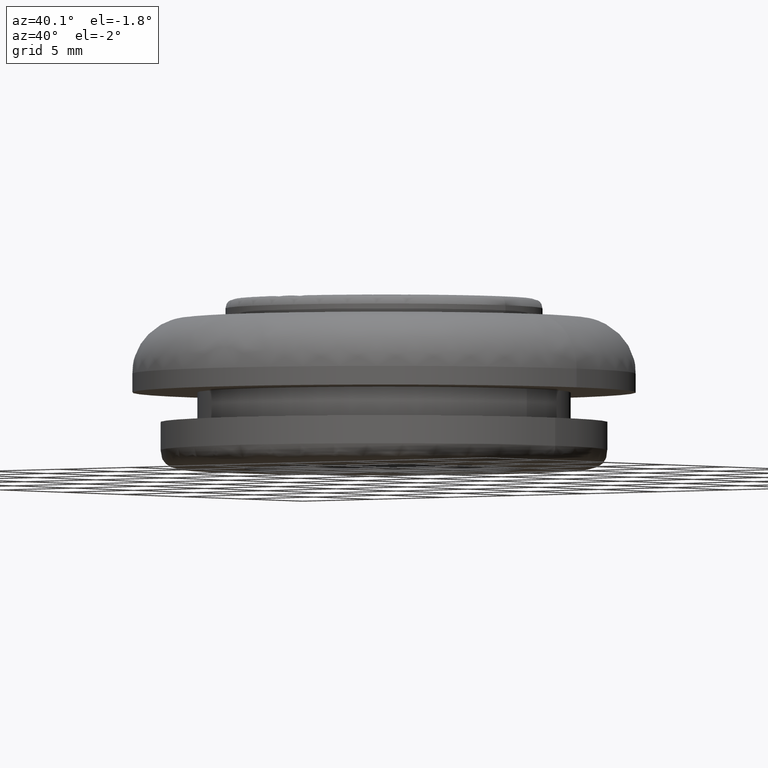
[diagram: clean part render]
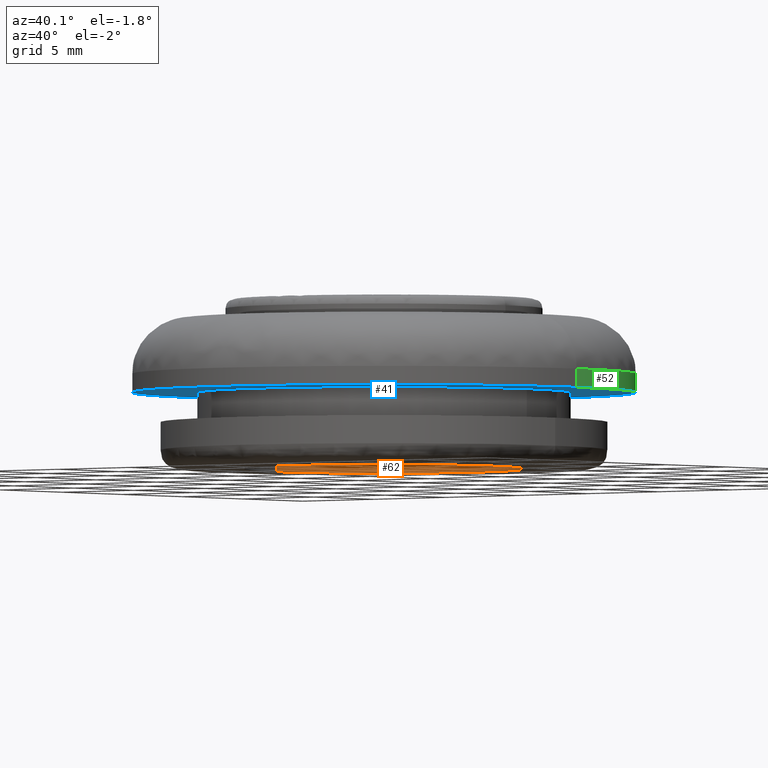
[diagram: same view with three faces highlighted in distinct colors, each labeled with its STEP entity id]
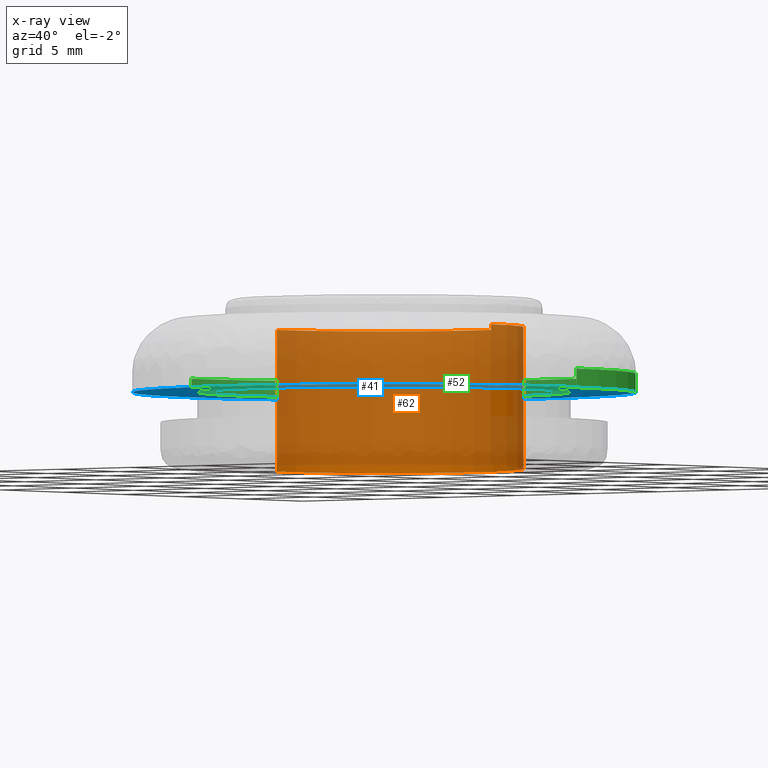
[diagram: x-ray of the same camera — body ghosted, the three highlighted faces saturated]
A machine part, auxiliary view with three faces highlighted in distinct colors.
The next image is the same camera in x-ray (body ghosted, the three faces saturated) — at least one of them is partly hidden behind the body in this view.
Their STEP definitions:

[orange] entity #62 — the highlighted cylindrical surface (partial cylindrical patch) has radius 7.5 mm, axis along (0, -0, 1).
#62=ADVANCED_FACE('',(#289),#288,.F.);
#288=CYLINDRICAL_SURFACE('',#551,7.50000000000E+000);
#289=FACE_OUTER_BOUND('',#552,.T.);
#548=CARTESIAN_POINT('',(2.76778069758E+002,0.00000000000E+000,0.00000000000E+000));
#549=DIRECTION('',(0.00000000000E+000,-0.00000000000E+000,1.00000000000E+000));
#550=DIRECTION('',(1.00000000000E+000,-0.00000000000E+000,-0.00000000000E+000));
#551=AXIS2_PLACEMENT_3D('',#548,#549,#550);
#552=EDGE_LOOP('',(#642,#643,#644,#645));
#642=ORIENTED_EDGE('',*,*,#669,.T.);
#643=ORIENTED_EDGE('',*,*,#694,.T.);
#644=ORIENTED_EDGE('',*,*,#664,.F.);
#645=ORIENTED_EDGE('',*,*,#695,.F.);
#664=EDGE_CURVE('',#794,#795,#796,.T.);
#669=EDGE_CURVE('',#823,#822,#830,.T.);
#694=EDGE_CURVE('',#822,#795,#988,.T.);
#695=EDGE_CURVE('',#823,#794,#994,.T.);
#794=VERTEX_POINT('',#1070);
#795=VERTEX_POINT('',#1071);
#796=CIRCLE('',#1075,7.50000000000E+000);
#822=VERTEX_POINT('',#1090);
#823=VERTEX_POINT('',#1091);
#830=CIRCLE('',#1099,7.50000000000E+000);
#988=(BOUNDED_CURVE() B_SPLINE_CURVE(1,(#1186,#1187),.UNSPECIFIED.,.F.,.F.) B_SPLINE_CURVE_WITH_KNOTS((2,2),(8.33333366442E-002,9.16666667899E-001),.UNSPECIFIED.) CURVE() GEOMETRIC_REPRESENTATION_ITEM() RATIONAL_B_SPLINE_CURVE((1.00000000000E+000,1.00000000000E+000)) REPRESENTATION_ITEM('') );
#994=(BOUNDED_CURVE() B_SPLINE_CURVE(1,(#1188,#1189),.UNSPECIFIED.,.F.,.F.) B_SPLINE_CURVE_WITH_KNOTS((2,2),(8.33333333333E-002,9.16666666667E-001),.UNSPECIFIED.) CURVE() GEOMETRIC_REPRESENTATION_ITEM() RATIONAL_B_SPLINE_CURVE((7.50000000000E-001,7.50000000000E-001)) REPRESENTATION_ITEM('') );
#1070=CARTESIAN_POINT('',(2.69278069758E+002,0.00000000000E+000,2.71237988893E+002));
#1071=CARTESIAN_POINT('',(2.84278069758E+002,8.88178419700E-016,2.71237988893E+002));
#1072=CARTESIAN_POINT('',(2.76778069758E+002,0.00000000000E+000,2.71237988893E+002));
#1073=DIRECTION('',(-0.00000000000E+000,0.00000000000E+000,-1.00000000000E+000));
#1074=DIRECTION('',(-1.00000000000E+000,-1.22460635382E-016,0.00000000000E+000));
#1075=AXIS2_PLACEMENT_3D('',#1072,#1073,#1074);
#1090=CARTESIAN_POINT('',(2.84278069758E+002,8.88178419700E-016,2.63637988893E+002));
#1091=CARTESIAN_POINT('',(2.69278069758E+002,0.00000000000E+000,2.63637988893E+002));
#1096=CARTESIAN_POINT('',(2.76778069758E+002,0.00000000000E+000,2.63637988893E+002));
#1097=DIRECTION('',(-0.00000000000E+000,0.00000000000E+000,-1.00000000000E+000));
#1098=DIRECTION('',(-1.00000000000E+000,-1.22460635382E-016,0.00000000000E+000));
#1099=AXIS2_PLACEMENT_3D('',#1096,#1097,#1098);
#1186=CARTESIAN_POINT('',(2.84278069758E+002,0.00000000000E+000,2.63637988923E+002));
#1187=CARTESIAN_POINT('',(2.84278069758E+002,0.00000000000E+000,2.71237988904E+002));
#1188=CARTESIAN_POINT('',(2.69278069758E+002,0.00000000000E+000,2.63637988893E+002));
#1189=CARTESIAN_POINT('',(2.69278069758E+002,0.00000000000E+000,2.71237988893E+002));

[blue] entity #41 — the highlighted planar face has unit normal (0, 0, 1).
#41=ADVANCED_FACE('',(#76,#77),#75,.F.);
#75=PLANE('',#317);
#76=FACE_OUTER_BOUND('',#318,.T.);
#77=FACE_BOUND('',#319,.T.);
#314=CARTESIAN_POINT('',(2.59228069758E+002,-2.80592230826E+001,2.67737988893E+002));
#315=DIRECTION('',(0.00000000000E+000,0.00000000000E+000,1.00000000000E+000));
#316=DIRECTION('',(1.00000000000E+000,0.00000000000E+000,-0.00000000000E+000));
#317=AXIS2_PLACEMENT_3D('',#314,#315,#316);
#318=EDGE_LOOP('',(#562,#563));
#319=EDGE_LOOP('',(#564,#565));
#562=ORIENTED_EDGE('',*,*,#654,.T.);
#563=ORIENTED_EDGE('',*,*,#655,.T.);
#564=ORIENTED_EDGE('',*,*,#656,.F.);
#565=ORIENTED_EDGE('',*,*,#657,.F.);
#654=EDGE_CURVE('',#724,#725,#726,.T.);
#655=EDGE_CURVE('',#725,#724,#732,.T.);
#656=EDGE_CURVE('',#738,#739,#740,.T.);
#657=EDGE_CURVE('',#739,#738,#746,.T.);
#724=VERTEX_POINT('',#1020);
#725=VERTEX_POINT('',#1021);
#726=CIRCLE('',#1025,1.35000000000E+001);
#732=CIRCLE('',#1029,1.35000000000E+001);
#738=VERTEX_POINT('',#1030);
#739=VERTEX_POINT('',#1031);
#740=CIRCLE('',#1035,1.00000000000E+001);
#746=CIRCLE('',#1039,1.00000000000E+001);
#1020=CARTESIAN_POINT('',(2.63278069758E+002,0.00000000000E+000,2.67737988893E+002));
#1021=CARTESIAN_POINT('',(2.90278069758E+002,0.00000000000E+000,2.67737988893E+002));
#1022=CARTESIAN_POINT('',(2.76778069758E+002,0.00000000000E+000,2.67737988893E+002));
#1023=DIRECTION('',(-0.00000000000E+000,0.00000000000E+000,-1.00000000000E+000));
#1024=DIRECTION('',(-1.00000000000E+000,-1.22460635382E-016,0.00000000000E+000));
#1025=AXIS2_PLACEMENT_3D('',#1022,#1023,#1024);
#1026=CARTESIAN_POINT('',(2.76778069758E+002,0.00000000000E+000,2.67737988893E+002));
#1027=DIRECTION('',(-0.00000000000E+000,0.00000000000E+000,-1.00000000000E+000));
#1028=DIRECTION('',(-1.00000000000E+000,-1.22460635382E-016,0.00000000000E+000));
#1029=AXIS2_PLACEMENT_3D('',#1026,#1027,#1028);
#1030=CARTESIAN_POINT('',(2.86778069758E+002,5.92118946467E-016,2.67737988893E+002));
#1031=CARTESIAN_POINT('',(2.66778069758E+002,0.00000000000E+000,2.67737988893E+002));
#1032=CARTESIAN_POINT('',(2.76778069758E+002,0.00000000000E+000,2.67737988893E+002));
#1033=DIRECTION('',(-0.00000000000E+000,0.00000000000E+000,-1.00000000000E+000));
#1034=DIRECTION('',(-1.00000000000E+000,-1.22460635382E-016,0.00000000000E+000));
#1035=AXIS2_PLACEMENT_3D('',#1032,#1033,#1034);
#1036=CARTESIAN_POINT('',(2.76778069758E+002,0.00000000000E+000,2.67737988893E+002));
#1037=DIRECTION('',(-0.00000000000E+000,0.00000000000E+000,-1.00000000000E+000));
#1038=DIRECTION('',(-1.00000000000E+000,-1.22460635382E-016,0.00000000000E+000));
#1039=AXIS2_PLACEMENT_3D('',#1036,#1037,#1038);

[green] entity #52 — the highlighted cylindrical surface (partial cylindrical patch) has radius 13.5 mm, axis along (0, -0, 1).
#52=ADVANCED_FACE('',(#189),#188,.T.);
#188=CYLINDRICAL_SURFACE('',#417,1.35000000000E+001);
#189=FACE_OUTER_BOUND('',#418,.T.);
#414=CARTESIAN_POINT('',(2.76778069758E+002,0.00000000000E+000,0.00000000000E+000));
#415=DIRECTION('',(0.00000000000E+000,-0.00000000000E+000,1.00000000000E+000));
#416=DIRECTION('',(1.00000000000E+000,-0.00000000000E+000,-0.00000000000E+000));
#417=AXIS2_PLACEMENT_3D('',#414,#415,#416);
#418=EDGE_LOOP('',(#602,#603,#604,#605));
#602=ORIENTED_EDGE('',*,*,#678,.T.);
#603=ORIENTED_EDGE('',*,*,#679,.F.);
#604=ORIENTED_EDGE('',*,*,#654,.F.);
#605=ORIENTED_EDGE('',*,*,#680,.T.);
#654=EDGE_CURVE('',#724,#725,#726,.T.);
#678=EDGE_CURVE('',#886,#887,#888,.T.);
#679=EDGE_CURVE('',#725,#887,#894,.T.);
#680=EDGE_CURVE('',#724,#886,#900,.T.);
#724=VERTEX_POINT('',#1020);
#725=VERTEX_POINT('',#1021);
#726=CIRCLE('',#1025,1.35000000000E+001);
#886=VERTEX_POINT('',#1126);
#887=VERTEX_POINT('',#1127);
#888=CIRCLE('',#1131,1.35000000000E+001);
#894=(BOUNDED_CURVE() B_SPLINE_CURVE(1,(#1132,#1133),.UNSPECIFIED.,.F.,.F.) B_SPLINE_CURVE_WITH_KNOTS((2,2),(8.33332935974E-002,9.16666633252E-001),.UNSPECIFIED.) CURVE() GEOMETRIC_REPRESENTATION_ITEM() RATIONAL_B_SPLINE_CURVE((1.00000000000E+000,1.00000000000E+000)) REPRESENTATION_ITEM('') );
#900=(BOUNDED_CURVE() B_SPLINE_CURVE(1,(#1134,#1135),.UNSPECIFIED.,.F.,.F.) B_SPLINE_CURVE_WITH_KNOTS((2,2),(8.33333333333E-002,9.16666666667E-001),.UNSPECIFIED.) CURVE() GEOMETRIC_REPRESENTATION_ITEM() RATIONAL_B_SPLINE_CURVE((7.50000000000E-001,7.50000000000E-001)) REPRESENTATION_ITEM('') );
#1020=CARTESIAN_POINT('',(2.63278069758E+002,0.00000000000E+000,2.67737988893E+002));
#1021=CARTESIAN_POINT('',(2.90278069758E+002,0.00000000000E+000,2.67737988893E+002));
#1022=CARTESIAN_POINT('',(2.76778069758E+002,0.00000000000E+000,2.67737988893E+002));
#1023=DIRECTION('',(-0.00000000000E+000,0.00000000000E+000,-1.00000000000E+000));
#1024=DIRECTION('',(-1.00000000000E+000,-1.22460635382E-016,0.00000000000E+000));
#1025=AXIS2_PLACEMENT_3D('',#1022,#1023,#1024);
#1126=CARTESIAN_POINT('',(2.63278069758E+002,0.00000000000E+000,2.68737988893E+002));
#1127=CARTESIAN_POINT('',(2.90278069758E+002,0.00000000000E+000,2.68737988893E+002));
#1128=CARTESIAN_POINT('',(2.76778069758E+002,0.00000000000E+000,2.68737988893E+002));
#1129=DIRECTION('',(-0.00000000000E+000,0.00000000000E+000,-1.00000000000E+000));
#1130=DIRECTION('',(-1.00000000000E+000,-1.22460635382E-016,0.00000000000E+000));
#1131=AXIS2_PLACEMENT_3D('',#1128,#1129,#1130);
#1132=CARTESIAN_POINT('',(2.90278069758E+002,0.00000000000E+000,2.67737988845E+002));
#1133=CARTESIAN_POINT('',(2.90278069758E+002,0.00000000000E+000,2.68737988852E+002));
#1134=CARTESIAN_POINT('',(2.63278069758E+002,-5.92118946467E-016,2.67737988893E+002));
#1135=CARTESIAN_POINT('',(2.63278069758E+002,-5.92118946467E-016,2.68737988893E+002));